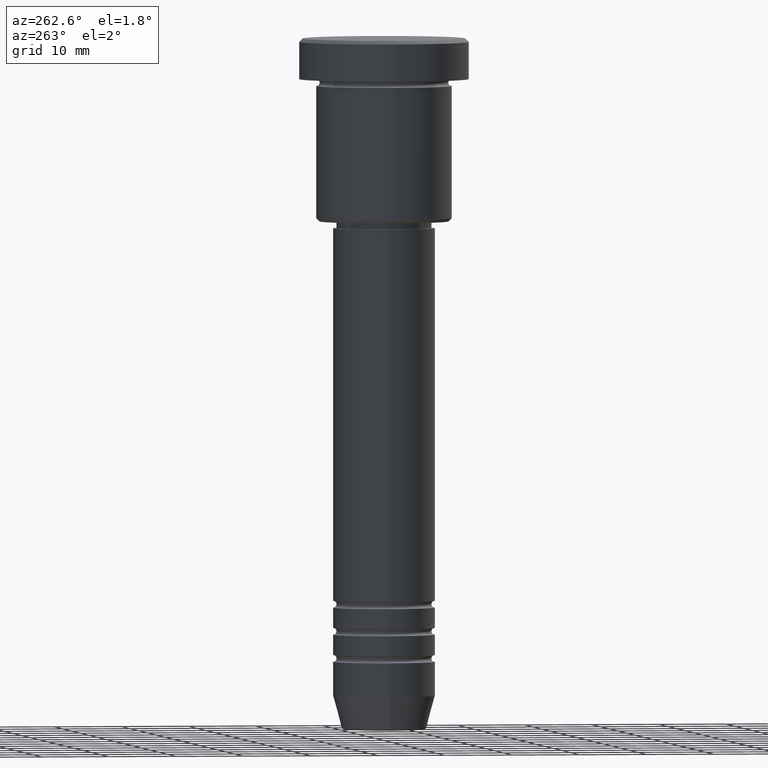
[diagram: clean part render]
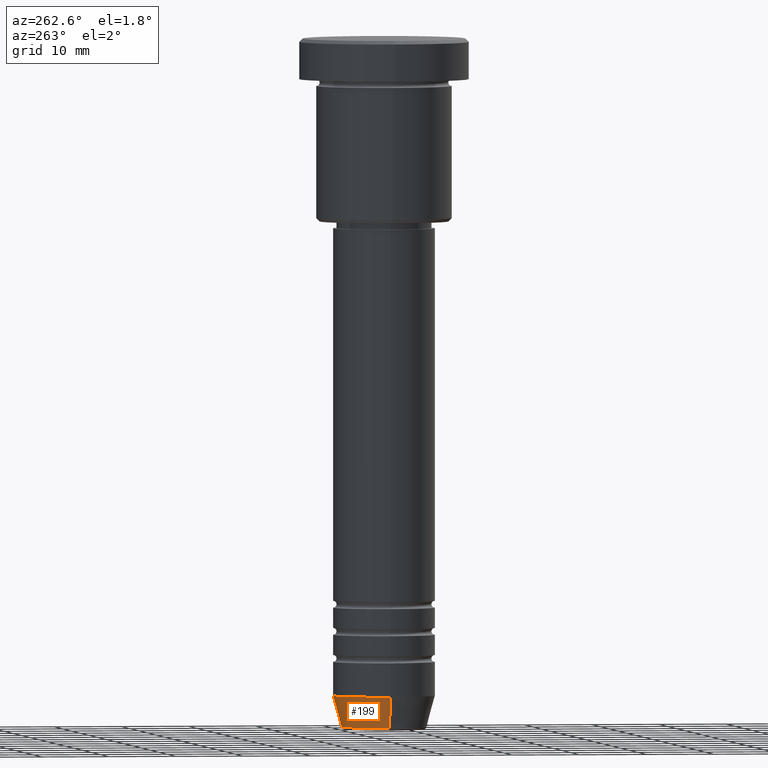
[diagram: same view with one face highlighted and labeled with its STEP entity id]
A machine part, auxiliary view. The second image highlights one B-rep face of the part: STEP entity #199.
In plain terms, the highlighted conical surface has half-angle 15 deg.
Its self-contained STEP definition (entity closure, byte-faithful):
#9 = DIRECTION ( 'NONE',  ( 0.2588190451025213501, 0.000000000000000000, 0.9659258262890680902 ) ) ;
#14 = AXIS2_PLACEMENT_3D ( 'NONE', #792, #1070, #332 ) ;
#27 = DIRECTION ( 'NONE',  ( -0.000000000000000000, -0.000000000000000000, 1.000000000000000000 ) ) ;
#111 = CARTESIAN_POINT ( 'NONE',  ( 0.000000000000000000, 0.000000000000000000, -97.00000000000000000 ) ) ;
#157 = DIRECTION ( 'NONE',  ( 1.000000000000000000, 0.000000000000000000, 0.000000000000000000 ) ) ;
#176 = VERTEX_POINT ( 'NONE', #319 ) ;
#199 = ADVANCED_FACE ( 'NONE', ( #601 ), #1005, .T. ) ;
#319 = CARTESIAN_POINT ( 'NONE',  ( 7.500000000000000000, 0.000000000000000000, -97.00000000000000000 ) ) ;
#332 = DIRECTION ( 'NONE',  ( 1.000000000000000000, 0.000000000000000000, 0.000000000000000000 ) ) ;
#381 = DIRECTION ( 'NONE',  ( 1.000000000000000000, 0.000000000000000000, 0.000000000000000000 ) ) ;
#410 = LINE ( 'NONE', #1046, #670 ) ;
#447 = CARTESIAN_POINT ( 'NONE',  ( 7.500000000000000000, 0.000000000000000000, -97.00000000000000000 ) ) ;
#453 = ORIENTED_EDGE ( 'NONE', *, *, #998, .T. ) ;
#523 = CIRCLE ( 'NONE', #14, 6.259553456999438659 ) ;
#536 = LINE ( 'NONE', #447, #1054 ) ;
#570 = CARTESIAN_POINT ( 'NONE',  ( -6.259553456999439547, 8.425296549405630472E-16, -101.6294095225512706 ) ) ;
#587 = CARTESIAN_POINT ( 'NONE',  ( -7.500000000000000000, 9.184850993605147944E-16, -97.00000000000000000 ) ) ;
#595 = DIRECTION ( 'NONE',  ( -0.2588190451025213501, 3.169619151431772337E-17, 0.9659258262890680902 ) ) ;
#601 = FACE_OUTER_BOUND ( 'NONE', #1074, .T. ) ;
#629 = EDGE_CURVE ( 'NONE', #176, #738, #874, .T. ) ;
#666 = AXIS2_PLACEMENT_3D ( 'NONE', #867, #939, #157 ) ;
#670 = VECTOR ( 'NONE', #595, 1000.000000000000000 ) ;
#703 = EDGE_CURVE ( 'NONE', #980, #738, #410, .T. ) ;
#738 = VERTEX_POINT ( 'NONE', #587 ) ;
#792 = CARTESIAN_POINT ( 'NONE',  ( 0.000000000000000000, 0.000000000000000000, -101.6294095225512706 ) ) ;
#867 = CARTESIAN_POINT ( 'NONE',  ( 0.000000000000000000, 0.000000000000000000, -97.00000000000000000 ) ) ;
#874 = CIRCLE ( 'NONE', #1053, 7.500000000000000000 ) ;
#901 = ORIENTED_EDGE ( 'NONE', *, *, #703, .T. ) ;
#939 = DIRECTION ( 'NONE',  ( -0.000000000000000000, -0.000000000000000000, 1.000000000000000000 ) ) ;
#980 = VERTEX_POINT ( 'NONE', #570 ) ;
#998 = EDGE_CURVE ( 'NONE', #1015, #980, #523, .T. ) ;
#1005 = CONICAL_SURFACE ( 'NONE', #666, 7.500000000000000000, 0.2617993877991500740 ) ;
#1015 = VERTEX_POINT ( 'NONE', #1180 ) ;
#1046 = CARTESIAN_POINT ( 'NONE',  ( -7.500000000000000000, 9.184850993605147944E-16, -97.00000000000000000 ) ) ;
#1053 = AXIS2_PLACEMENT_3D ( 'NONE', #111, #27, #381 ) ;
#1054 = VECTOR ( 'NONE', #9, 1000.000000000000000 ) ;
#1070 = DIRECTION ( 'NONE',  ( -0.000000000000000000, -0.000000000000000000, 1.000000000000000000 ) ) ;
#1074 = EDGE_LOOP ( 'NONE', ( #453, #901, #1120, #1130 ) ) ;
#1086 = EDGE_CURVE ( 'NONE', #1015, #176, #536, .T. ) ;
#1120 = ORIENTED_EDGE ( 'NONE', *, *, #629, .F. ) ;
#1130 = ORIENTED_EDGE ( 'NONE', *, *, #1086, .F. ) ;
#1180 = CARTESIAN_POINT ( 'NONE',  ( 6.259553456999438659, 0.000000000000000000, -101.6294095225512706 ) ) ;